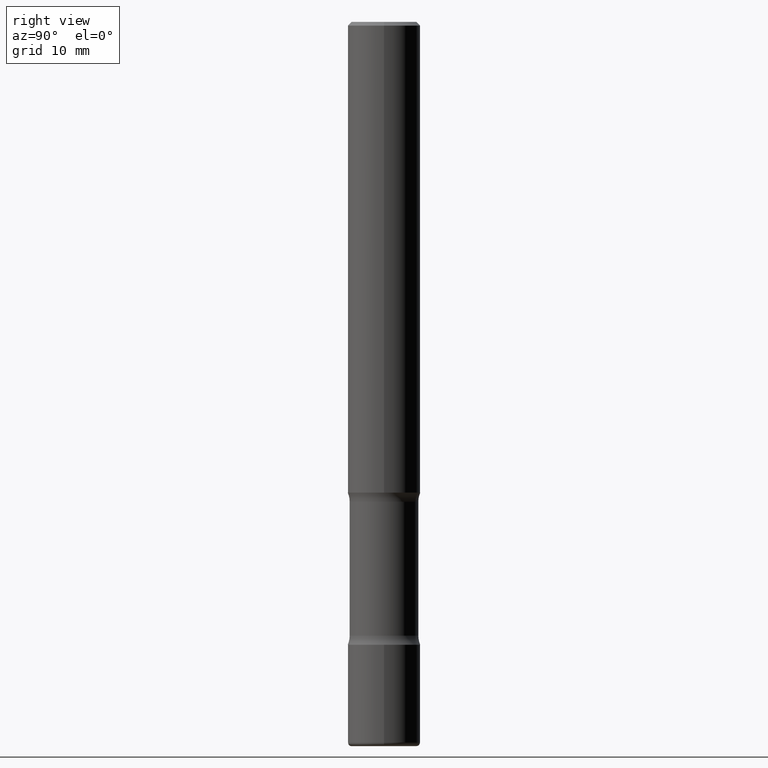
[diagram: clean part render]
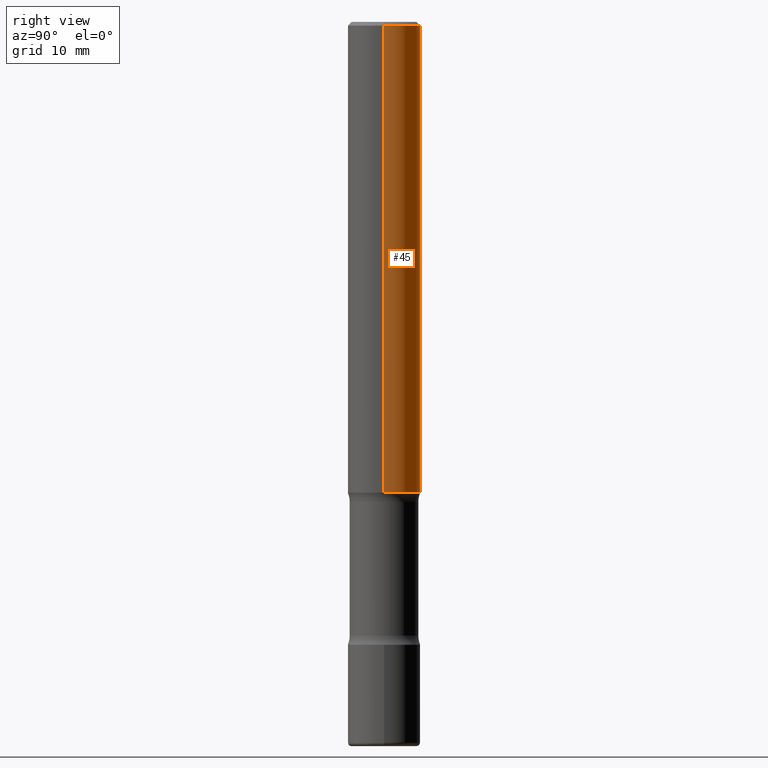
[diagram: same view with one face highlighted and labeled with its STEP entity id]
A machine part, right view. The second image highlights one B-rep face of the part: STEP entity #45.
In plain terms, the highlighted cylindrical surface (edge-blend (fillet) strip) has radius 5 mm, axis along (-0, 0, 1).
Its self-contained STEP definition (entity closure, byte-faithful):
#9 = CIRCLE ( 'NONE', #526, 0.1968500000000001082 ) ;
#12 = DIRECTION ( 'NONE',  ( -2.445468806185136877E-29, 3.491481338843145188E-15, 1.000000000000000000 ) ) ;
#20 = FACE_OUTER_BOUND ( 'NONE', #554, .T. ) ;
#30 = DIRECTION ( 'NONE',  ( 1.000000000000000000, -6.982962677686266711E-15, 0.000000000000000000 ) ) ;
#45 = ADVANCED_FACE ( 'NONE', ( #20 ), #188, .T. ) ;
#56 = CARTESIAN_POINT ( 'NONE',  ( 0.1968499999999999694, -1.374596203102541411E-15, 9.598753983154298056E-30 ) ) ;
#57 = CARTESIAN_POINT ( 'NONE',  ( 0.1968499999999998307, -1.420318657638187938E-15, -0.02000000000000006981 ) ) ;
#95 = LINE ( 'NONE', #56, #130 ) ;
#96 = EDGE_CURVE ( 'NONE', #412, #559, #95, .T. ) ;
#130 = VECTOR ( 'NONE', #12, 39.37007874015748143 ) ;
#161 = CARTESIAN_POINT ( 'NONE',  ( 6.257954675027765161E-29, -8.934700746099610252E-15, -2.559000000000000163 ) ) ;
#164 = ORIENTED_EDGE ( 'NONE', *, *, #96, .F. ) ;
#188 = CYLINDRICAL_SURFACE ( 'NONE', #371, 0.1968499999999999694 ) ;
#213 = CARTESIAN_POINT ( 'NONE',  ( -0.1968500000000001082, -3.103561811094476227E-15, -2.559000000000000163 ) ) ;
#218 = ORIENTED_EDGE ( 'NONE', *, *, #287, .T. ) ;
#223 = EDGE_CURVE ( 'NONE', #501, #375, #504, .T. ) ;
#230 = DIRECTION ( 'NONE',  ( 1.000000000000000000, -6.982962677686266711E-15, 4.876176775795935793E-29 ) ) ;
#234 = CARTESIAN_POINT ( 'NONE',  ( 0.000000000000000000, 0.000000000000000000, 0.000000000000000000 ) ) ;
#257 = CARTESIAN_POINT ( 'NONE',  ( 0.1968500000000001082, -1.030929694920215344E-14, -2.559000000000000163 ) ) ;
#261 = AXIS2_PLACEMENT_3D ( 'NONE', #420, #290, #30 ) ;
#287 = EDGE_CURVE ( 'NONE', #412, #501, #9, .T. ) ;
#290 = DIRECTION ( 'NONE',  ( -2.445468806185136597E-29, 3.491481338843145583E-15, 1.000000000000000000 ) ) ;
#291 = ORIENTED_EDGE ( 'NONE', *, *, #223, .T. ) ;
#303 = ORIENTED_EDGE ( 'NONE', *, *, #313, .F. ) ;
#306 = VECTOR ( 'NONE', #503, 39.37007874015748143 ) ;
#313 = EDGE_CURVE ( 'NONE', #559, #375, #548, .T. ) ;
#331 = DIRECTION ( 'NONE',  ( -2.445468806185136597E-29, 3.491481338843145583E-15, 1.000000000000000000 ) ) ;
#371 = AXIS2_PLACEMENT_3D ( 'NONE', #234, #450, #230 ) ;
#375 = VERTEX_POINT ( 'NONE', #476 ) ;
#412 = VERTEX_POINT ( 'NONE', #257 ) ;
#417 = DIRECTION ( 'NONE',  ( 1.000000000000000000, -6.982962677686265133E-15, 0.000000000000000000 ) ) ;
#420 = CARTESIAN_POINT ( 'NONE',  ( 4.890937612370289799E-31, -6.982962677686315028E-17, -0.02000000000000006981 ) ) ;
#450 = DIRECTION ( 'NONE',  ( -2.445468806185136597E-29, 3.491481338843145583E-15, 1.000000000000000000 ) ) ;
#476 = CARTESIAN_POINT ( 'NONE',  ( -0.1968499999999998307, 1.304766576325677324E-15, -0.02000000000000006981 ) ) ;
#501 = VERTEX_POINT ( 'NONE', #213 ) ;
#503 = DIRECTION ( 'NONE',  ( -2.445468806185136877E-29, 3.491481338843145188E-15, 1.000000000000000000 ) ) ;
#504 = LINE ( 'NONE', #536, #306 ) ;
#526 = AXIS2_PLACEMENT_3D ( 'NONE', #161, #331, #417 ) ;
#536 = CARTESIAN_POINT ( 'NONE',  ( -0.1968499999999999694, 1.398703375343756999E-15, -9.682923725166782276E-30 ) ) ;
#548 = CIRCLE ( 'NONE', #261, 0.1968499999999998307 ) ;
#554 = EDGE_LOOP ( 'NONE', ( #218, #291, #303, #164 ) ) ;
#559 = VERTEX_POINT ( 'NONE', #57 ) ;